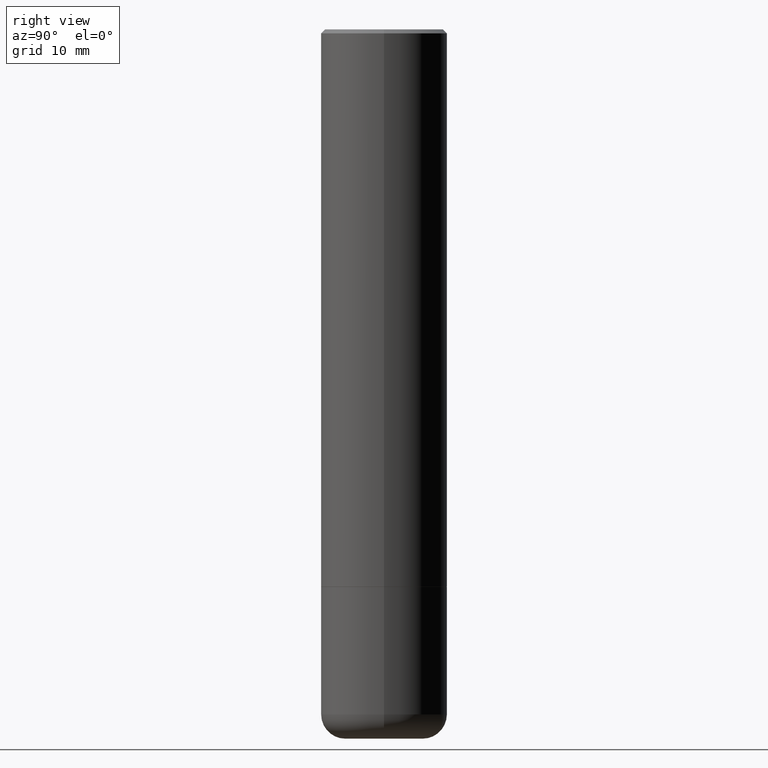
[diagram: clean part render]
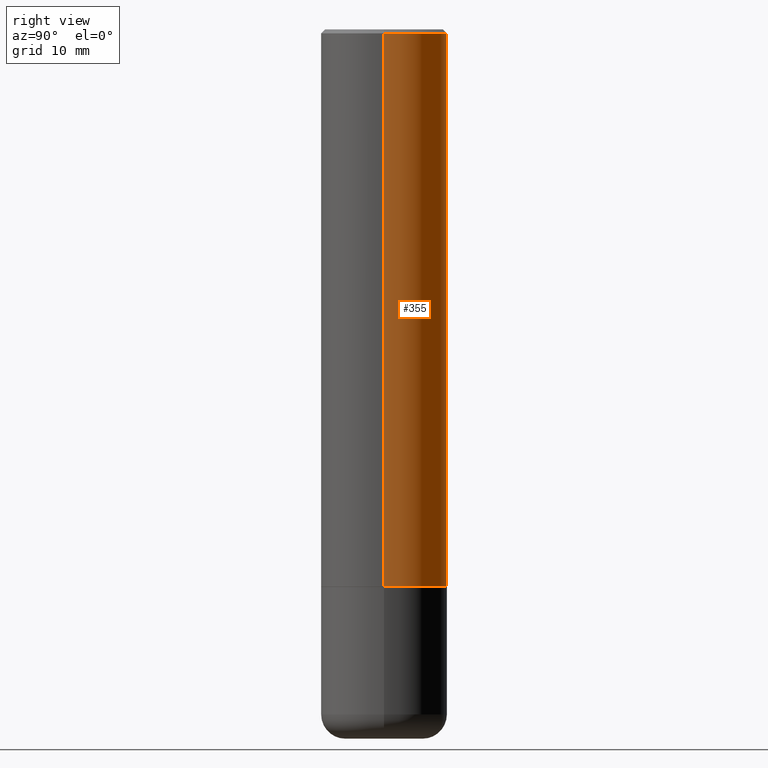
[diagram: same view with one face highlighted and labeled with its STEP entity id]
A machine part, right view. The second image highlights one B-rep face of the part: STEP entity #355.
In plain terms, the highlighted cylindrical surface (partial cylindrical patch) has radius 7.9375 mm, axis along (-0, 0, 1).
Its self-contained STEP definition (entity closure, byte-faithful):
#6 = DIRECTION ( 'NONE',  ( -2.445468806185136877E-29, 3.491481338843145188E-15, 1.000000000000000000 ) ) ;
#9 = CARTESIAN_POINT ( 'NONE',  ( 0.3124999999999993339, -2.182175836776953614E-15, 1.523805242436226712E-29 ) ) ;
#12 = EDGE_CURVE ( 'NONE', #261, #484, #324, .T. ) ;
#16 = FACE_OUTER_BOUND ( 'NONE', #35, .T. ) ;
#35 = EDGE_LOOP ( 'NONE', ( #255, #448, #443, #101 ) ) ;
#63 = DIRECTION ( 'NONE',  ( -2.445468806185136597E-29, 3.491481338843145583E-15, 1.000000000000000000 ) ) ;
#82 = CARTESIAN_POINT ( 'NONE',  ( -0.3124999999999993339, 2.220446049250308348E-15, -1.537167215704654869E-29 ) ) ;
#91 = DIRECTION ( 'NONE',  ( 1.000000000000000000, -6.982962677686269077E-15, 0.000000000000000000 ) ) ;
#101 = ORIENTED_EDGE ( 'NONE', *, *, #296, .F. ) ;
#113 = VECTOR ( 'NONE', #191, 39.37007874015748143 ) ;
#138 = DIRECTION ( 'NONE',  ( 1.000000000000000000, -6.982962677686267499E-15, 0.000000000000000000 ) ) ;
#141 = CARTESIAN_POINT ( 'NONE',  ( -0.3124999999999991673, 2.112346210000089527E-15, -0.02000000000000010103 ) ) ;
#149 = AXIS2_PLACEMENT_3D ( 'NONE', #397, #362, #316 ) ;
#191 = DIRECTION ( 'NONE',  ( -2.445468806185136877E-29, 3.491481338843145188E-15, 1.000000000000000000 ) ) ;
#215 = VERTEX_POINT ( 'NONE', #422 ) ;
#240 = CARTESIAN_POINT ( 'NONE',  ( 6.722593748202942280E-29, -9.598082200479810007E-15, -2.749000000000000554 ) ) ;
#255 = ORIENTED_EDGE ( 'NONE', *, *, #328, .T. ) ;
#261 = VERTEX_POINT ( 'NONE', #456 ) ;
#266 = AXIS2_PLACEMENT_3D ( 'NONE', #398, #63, #138 ) ;
#282 = EDGE_CURVE ( 'NONE', #455, #484, #339, .T. ) ;
#290 = VECTOR ( 'NONE', #6, 39.37007874015748143 ) ;
#296 = EDGE_CURVE ( 'NONE', #215, #261, #413, .T. ) ;
#309 = CARTESIAN_POINT ( 'NONE',  ( -0.3124999999999994449, -2.613509864378025150E-15, -2.749000000000000554 ) ) ;
#316 = DIRECTION ( 'NONE',  ( 1.000000000000000000, -6.982962677686266711E-15, 4.876176775795935793E-29 ) ) ;
#324 = CIRCLE ( 'NONE', #266, 0.3124999999999991673 ) ;
#328 = EDGE_CURVE ( 'NONE', #215, #455, #409, .T. ) ;
#339 = LINE ( 'NONE', #82, #113 ) ;
#355 = ADVANCED_FACE ( 'NONE', ( #16 ), #387, .T. ) ;
#362 = DIRECTION ( 'NONE',  ( -2.445468806185136597E-29, 3.491481338843145583E-15, 1.000000000000000000 ) ) ;
#387 = CYLINDRICAL_SURFACE ( 'NONE', #149, 0.3124999999999993339 ) ;
#397 = CARTESIAN_POINT ( 'NONE',  ( 0.000000000000000000, 0.000000000000000000, 0.000000000000000000 ) ) ;
#398 = CARTESIAN_POINT ( 'NONE',  ( 4.890937612370298557E-31, -6.982962677686327354E-17, -0.02000000000000010103 ) ) ;
#409 = CIRCLE ( 'NONE', #490, 0.3124999999999994449 ) ;
#413 = LINE ( 'NONE', #9, #290 ) ;
#422 = CARTESIAN_POINT ( 'NONE',  ( 0.3124999999999994449, -1.178025803725676520E-14, -2.749000000000000554 ) ) ;
#430 = DIRECTION ( 'NONE',  ( -2.445468806185136597E-29, 3.491481338843145583E-15, 1.000000000000000000 ) ) ;
#443 = ORIENTED_EDGE ( 'NONE', *, *, #12, .F. ) ;
#448 = ORIENTED_EDGE ( 'NONE', *, *, #282, .T. ) ;
#455 = VERTEX_POINT ( 'NONE', #309 ) ;
#456 = CARTESIAN_POINT ( 'NONE',  ( 0.3124999999999991673, -2.213735251080460995E-15, -0.02000000000000010103 ) ) ;
#484 = VERTEX_POINT ( 'NONE', #141 ) ;
#490 = AXIS2_PLACEMENT_3D ( 'NONE', #240, #430, #91 ) ;